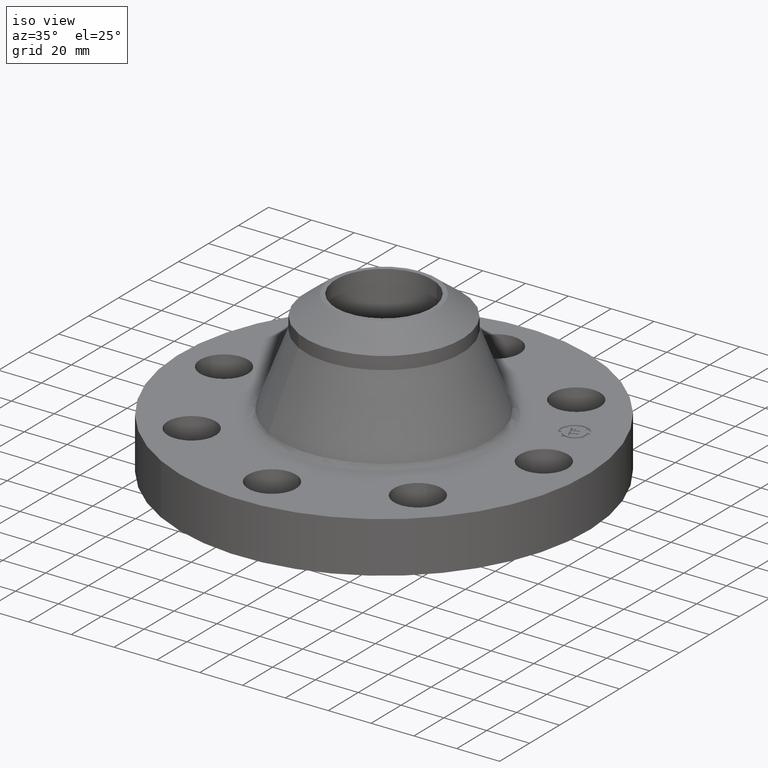
[diagram: clean part render]
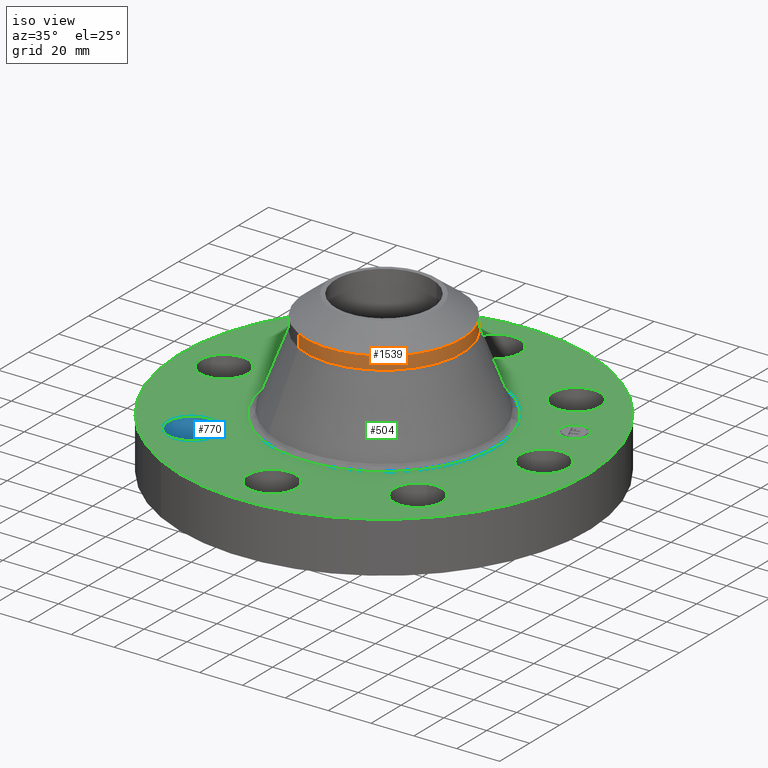
[diagram: same view with three faces highlighted in distinct colors, each labeled with its STEP entity id]
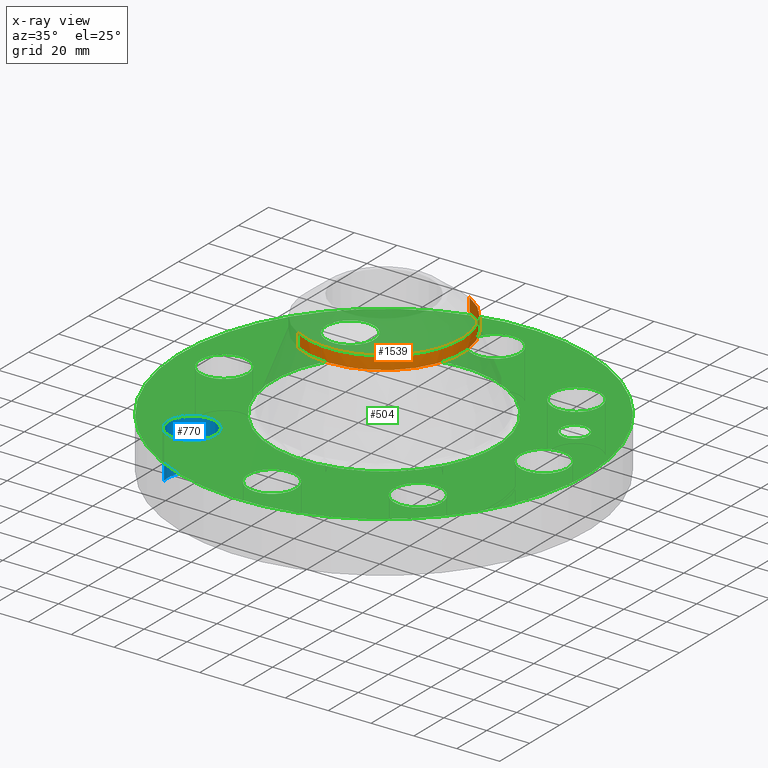
[diagram: x-ray of the same camera — body ghosted, the three highlighted faces saturated]
A machine part, iso view with three faces highlighted in distinct colors.
The next image is the same camera in x-ray (body ghosted, the three faces saturated) — at least one of them is partly hidden behind the body in this view.
Their STEP definitions:

[orange] entity #1539 — the highlighted cylindrical surface (partial cylindrical patch) has radius 36.576 mm, axis along (-0, 0, -1).
#1187=AXIS2_PLACEMENT_3D('Circle Axis2P3D',#1185,#1186,$) ;
#1506=AXIS2_PLACEMENT_3D('Cylinder Axis2P3D',#1503,#1504,#1505) ;
#1529=AXIS2_PLACEMENT_3D('Circle Axis2P3D',#1527,#1528,$) ;
#1151=CARTESIAN_POINT('Vertex',(-0.690372775594,-1.26371888913,2.33871616061)) ;
#1158=CARTESIAN_POINT('Vertex',(0.690372775595,1.26371888913,2.33871616061)) ;
#1185=CARTESIAN_POINT('Axis2P3D Location',(0.,0.,2.33871616061)) ;
#1462=CARTESIAN_POINT('Line Origine',(0.690372775595,1.26371888913,2.45682639686)) ;
#1466=CARTESIAN_POINT('Vertex',(0.690372775595,1.26371888913,2.57493663308)) ;
#1469=CARTESIAN_POINT('Line Origine',(-0.690372775595,-1.26371888913,2.45682639686)) ;
#1473=CARTESIAN_POINT('Vertex',(-0.690372775594,-1.26371888913,2.57493663308)) ;
#1503=CARTESIAN_POINT('Axis2P3D Location',(0.,0.,1.43875000001)) ;
#1509=CARTESIAN_POINT('Control Point',(0.690372775595,1.26371888913,2.57493663305)) ;
#1510=CARTESIAN_POINT('Control Point',(0.825691330054,1.18979402591,2.57493663305)) ;
#1511=CARTESIAN_POINT('Control Point',(0.951115075512,1.0977568363,2.57493663305)) ;
#1512=CARTESIAN_POINT('Control Point',(1.06340845083,0.989369711093,2.57493663305)) ;
#1513=CARTESIAN_POINT('Control Point',(1.25624520292,0.745193897747,2.57493663306)) ;
#1514=CARTESIAN_POINT('Control Point',(1.37807877501,0.458899605991,2.57493663306)) ;
#1515=CARTESIAN_POINT('Control Point',(1.41936111409,0.308389342118,2.57493663306)) ;
#1516=CARTESIAN_POINT('Control Point',(1.46063888593,-8.81872889711E-013,2.57493663306)) ;
#1517=CARTESIAN_POINT('Control Point',(1.41936111409,-0.30838934212,2.57493663307)) ;
#1518=CARTESIAN_POINT('Control Point',(1.37807877501,-0.458899605992,2.57493663307)) ;
#1519=CARTESIAN_POINT('Control Point',(1.25624520292,-0.745193897749,2.57493663307)) ;
#1520=CARTESIAN_POINT('Control Point',(1.06340845082,-0.989369711094,2.57493663307)) ;
#1521=CARTESIAN_POINT('Control Point',(0.951115075511,-1.0977568363,2.57493663308)) ;
#1522=CARTESIAN_POINT('Control Point',(0.825691330052,-1.18979402591,2.57493663308)) ;
#1523=CARTESIAN_POINT('Control Point',(0.690372775594,-1.26371888913,2.57493663308)) ;
#1524=CARTESIAN_POINT('Vertex',(0.690372775594,-1.26371888913,2.57493663305)) ;
#1527=CARTESIAN_POINT('Axis2P3D Location',(0.,0.,2.57493663308)) ;
#1186=DIRECTION('Axis2P3D Direction',(-0.,0.,-0.0393700787402)) ;
#1463=DIRECTION('Vector Direction',(0.,0.,-0.0393700787402)) ;
#1470=DIRECTION('Vector Direction',(0.,0.,-0.0393700787402)) ;
#1504=DIRECTION('Axis2P3D Direction',(-0.,0.,-0.0393700787402)) ;
#1505=DIRECTION('Axis2P3D XDirection',(0.0188750212049,0.0345504945626,0.)) ;
#1528=DIRECTION('Axis2P3D Direction',(-0.,0.,-0.0393700787402)) ;
#1464=VECTOR('Line Direction',#1463,0.0393700787402) ;
#1471=VECTOR('Line Direction',#1470,0.0393700787402) ;
#1533=ORIENTED_EDGE('',*,*,#1475,.F.) ;
#1534=ORIENTED_EDGE('',*,*,#1189,.F.) ;
#1535=ORIENTED_EDGE('',*,*,#1468,.T.) ;
#1536=ORIENTED_EDGE('',*,*,#1526,.F.) ;
#1537=ORIENTED_EDGE('',*,*,#1531,.T.) ;
#1539=ADVANCED_FACE('PartBody',(#1538),#1507,.T.) ;
#1508=B_SPLINE_CURVE_WITH_KNOTS('',5,(#1509,#1510,#1511,#1512,#1513,#1514,#1515,#1516,#1517,#1518,#1519,#1520,#1521,#1522,#1523),.UNSPECIFIED.,.F.,.U.,(6,3,3,3,6),(-39.1654464491,-19.5827232246,0.,19.5827232246,39.1654464491),.UNSPECIFIED.) ;
#1188=CIRCLE('generated circle',#1187,1.44000000001) ;
#1530=CIRCLE('generated circle',#1529,1.44000000001) ;
#1507=CYLINDRICAL_SURFACE('generated cylinder',#1506,1.44000000001) ;
#1189=EDGE_CURVE('',#1159,#1152,#1188,.T.) ;
#1468=EDGE_CURVE('',#1159,#1467,#1465,.F.) ;
#1475=EDGE_CURVE('',#1152,#1474,#1472,.F.) ;
#1526=EDGE_CURVE('',#1525,#1467,#1508,.F.) ;
#1531=EDGE_CURVE('',#1525,#1474,#1530,.T.) ;
#1532=EDGE_LOOP('',(#1533,#1534,#1535,#1536,#1537)) ;
#1538=FACE_OUTER_BOUND('',#1532,.T.) ;
#1465=LINE('Line',#1462,#1464) ;
#1472=LINE('Line',#1469,#1471) ;
#1152=VERTEX_POINT('',#1151) ;
#1159=VERTEX_POINT('',#1158) ;
#1467=VERTEX_POINT('',#1466) ;
#1474=VERTEX_POINT('',#1473) ;
#1525=VERTEX_POINT('',#1524) ;

[blue] entity #770 — the highlighted cylindrical surface (edge-blend (fillet) strip) has radius 11.176 mm, axis along (-0, 0, -1).
#228=AXIS2_PLACEMENT_3D('Circle Axis2P3D',#226,#227,$) ;
#398=AXIS2_PLACEMENT_3D('Circle Axis2P3D',#396,#397,$) ;
#762=AXIS2_PLACEMENT_3D('Cylinder Axis2P3D',#759,#760,#761) ;
#221=CARTESIAN_POINT('Vertex',(-1.65669209947,-1.95501654302,0.)) ;
#223=CARTESIAN_POINT('Vertex',(-2.5010957739,-2.20277133041,0.)) ;
#226=CARTESIAN_POINT('Axis2P3D Location',(-2.07889393669,-2.07889393671,0.)) ;
#396=CARTESIAN_POINT('Axis2P3D Location',(-2.07889393667,-2.07889393674,0.940000000004)) ;
#400=CARTESIAN_POINT('Vertex',(-2.5010957739,-2.20277133037,0.940000000004)) ;
#402=CARTESIAN_POINT('Vertex',(-1.6566920995,-1.955016543,0.939999999989)) ;
#735=CARTESIAN_POINT('Line Origine',(-1.6566920995,-1.955016543,0.469999999993)) ;
#740=CARTESIAN_POINT('Line Origine',(-2.5010957739,-2.2027713304,0.469999999993)) ;
#759=CARTESIAN_POINT('Axis2P3D Location',(-2.0788939367,-2.0788939367,0.93606299213)) ;
#227=DIRECTION('Axis2P3D Direction',(0.,0.,-0.0393700787402)) ;
#397=DIRECTION('Axis2P3D Direction',(0.,0.,-0.0393700787402)) ;
#736=DIRECTION('Vector Direction',(0.,0.,-0.0393700787402)) ;
#741=DIRECTION('Vector Direction',(0.,0.,-0.0393700787402)) ;
#760=DIRECTION('Axis2P3D Direction',(-0.,0.,-0.0393700787402)) ;
#761=DIRECTION('Axis2P3D XDirection',(-0.0377775444876,-0.0110842335096,0.)) ;
#737=VECTOR('Line Direction',#736,0.0393700787402) ;
#742=VECTOR('Line Direction',#741,0.0393700787402) ;
#765=ORIENTED_EDGE('',*,*,#744,.F.) ;
#766=ORIENTED_EDGE('',*,*,#230,.T.) ;
#767=ORIENTED_EDGE('',*,*,#739,.T.) ;
#768=ORIENTED_EDGE('',*,*,#404,.F.) ;
#770=ADVANCED_FACE('PartBody',(#769),#763,.F.) ;
#229=CIRCLE('generated circle',#228,0.440000000019) ;
#399=CIRCLE('generated circle',#398,0.440000000019) ;
#763=CYLINDRICAL_SURFACE('generated cylinder',#762,0.440000000002) ;
#230=EDGE_CURVE('',#224,#222,#229,.T.) ;
#404=EDGE_CURVE('',#401,#403,#399,.T.) ;
#739=EDGE_CURVE('',#222,#403,#738,.F.) ;
#744=EDGE_CURVE('',#224,#401,#743,.F.) ;
#764=EDGE_LOOP('',(#765,#766,#767,#768)) ;
#769=FACE_OUTER_BOUND('',#764,.T.) ;
#738=LINE('Line',#735,#737) ;
#743=LINE('Line',#740,#742) ;
#222=VERTEX_POINT('',#221) ;
#224=VERTEX_POINT('',#223) ;
#401=VERTEX_POINT('',#400) ;
#403=VERTEX_POINT('',#402) ;

[green] entity #504 — the highlighted planar face has unit normal (0, 0, -1).
#65=AXIS2_PLACEMENT_3D('Circle Axis2P3D',#63,#64,$) ;
#318=AXIS2_PLACEMENT_3D('Plane Axis2P3D',#315,#316,#317) ;
#322=AXIS2_PLACEMENT_3D('Circle Axis2P3D',#320,#321,$) ;
#331=AXIS2_PLACEMENT_3D('Circle Axis2P3D',#329,#330,$) ;
#344=AXIS2_PLACEMENT_3D('Circle Axis2P3D',#342,#343,$) ;
#353=AXIS2_PLACEMENT_3D('Circle Axis2P3D',#351,#352,$) ;
#362=AXIS2_PLACEMENT_3D('Circle Axis2P3D',#360,#361,$) ;
#371=AXIS2_PLACEMENT_3D('Circle Axis2P3D',#369,#370,$) ;
#380=AXIS2_PLACEMENT_3D('Circle Axis2P3D',#378,#379,$) ;
#389=AXIS2_PLACEMENT_3D('Circle Axis2P3D',#387,#388,$) ;
#398=AXIS2_PLACEMENT_3D('Circle Axis2P3D',#396,#397,$) ;
#407=AXIS2_PLACEMENT_3D('Circle Axis2P3D',#405,#406,$) ;
#416=AXIS2_PLACEMENT_3D('Circle Axis2P3D',#414,#415,$) ;
#425=AXIS2_PLACEMENT_3D('Circle Axis2P3D',#423,#424,$) ;
#434=AXIS2_PLACEMENT_3D('Circle Axis2P3D',#432,#433,$) ;
#443=AXIS2_PLACEMENT_3D('Circle Axis2P3D',#441,#442,$) ;
#452=AXIS2_PLACEMENT_3D('Circle Axis2P3D',#450,#451,$) ;
#461=AXIS2_PLACEMENT_3D('Circle Axis2P3D',#459,#460,$) ;
#470=AXIS2_PLACEMENT_3D('Circle Axis2P3D',#468,#469,$) ;
#479=AXIS2_PLACEMENT_3D('Circle Axis2P3D',#477,#478,$) ;
#488=AXIS2_PLACEMENT_3D('Circle Axis2P3D',#486,#487,$) ;
#497=AXIS2_PLACEMENT_3D('Circle Axis2P3D',#495,#496,$) ;
#46=CARTESIAN_POINT('Vertex',(2.55386367278,0.210947236987,0.939999999989)) ;
#60=CARTESIAN_POINT('Vertex',(3.32613632724,-0.210947236984,0.939999999989)) ;
#63=CARTESIAN_POINT('Axis2P3D Location',(2.94000000001,0.,0.939999999989)) ;
#106=CARTESIAN_POINT('Control Point',(3.32613632724,-0.210947236987,0.939999999989)) ;
#107=CARTESIAN_POINT('Control Point',(3.29300081274,-0.271601389433,0.93999999999)) ;
#108=CARTESIAN_POINT('Control Point',(3.24795588326,-0.325749398821,0.939999999991)) ;
#109=CARTESIAN_POINT('Control Point',(3.1926953225,-0.370262840224,0.939999999992)) ;
#110=CARTESIAN_POINT('Control Point',(3.06769808393,-0.435223603166,0.939999999993)) ;
#111=CARTESIAN_POINT('Control Point',(2.92741808449,-0.448097302225,0.939999999994)) ;
#112=CARTESIAN_POINT('Control Point',(2.85686721097,-0.440497941251,0.939999999995)) ;
#113=CARTESIAN_POINT('Control Point',(2.72254661997,-0.398045742217,0.939999999997)) ;
#114=CARTESIAN_POINT('Control Point',(2.61425060119,-0.307955883249,0.939999999998)) ;
#115=CARTESIAN_POINT('Control Point',(2.56973715979,-0.252695322491,0.939999999999)) ;
#116=CARTESIAN_POINT('Control Point',(2.50477639684,-0.127698083922,0.94)) ;
#117=CARTESIAN_POINT('Control Point',(2.49190269778,0.0125819155223,0.940000000002)) ;
#118=CARTESIAN_POINT('Control Point',(2.49950205876,0.0831327890369,0.940000000003)) ;
#119=CARTESIAN_POINT('Control Point',(2.52072815828,0.150293084541,0.940000000003)) ;
#120=CARTESIAN_POINT('Control Point',(2.55386367278,0.210947236987,0.940000000004)) ;
#315=CARTESIAN_POINT('Axis2P3D Location',(0.,3.75000000001,0.940000000004)) ;
#320=CARTESIAN_POINT('Axis2P3D Location',(1.67844740731E-015,1.00007491352E-011,0.940000000004)) ;
#324=CARTESIAN_POINT('Vertex',(1.79784576977,3.29093460711,0.940000000006)) ;
#326=CARTESIAN_POINT('Vertex',(-1.79784576978,-3.29093460711,0.940000000006)) ;
#329=CARTESIAN_POINT('Axis2P3D Location',(3.08521012762E-011,-6.85589817638E-012,0.940000000004)) ;
#342=CARTESIAN_POINT('Axis2P3D Location',(1.28121485424E-011,-3.36651791308E-011,0.940000000004)) ;
#346=CARTESIAN_POINT('Vertex',(-0.984191432936,-1.8015503338,0.94)) ;
#348=CARTESIAN_POINT('Vertex',(0.98419143294,1.80155033381,0.94)) ;
#351=CARTESIAN_POINT('Axis2P3D Location',(-1.28121485424E-011,-1.96669277539E-011,0.940000000004)) ;
#360=CARTESIAN_POINT('Axis2P3D Location',(2.07889393666,-2.07889393672,0.940000000004)) ;
#364=CARTESIAN_POINT('Vertex',(2.20277133038,-2.50109577389,0.940000000004)) ;
#366=CARTESIAN_POINT('Vertex',(1.955016543,-1.6566920995,0.939999999989)) ;
#369=CARTESIAN_POINT('Axis2P3D Location',(2.07889393673,-2.0788939367,0.940000000004)) ;
#378=CARTESIAN_POINT('Axis2P3D Location',(3.49676543189E-017,-2.94000000003,0.940000000004)) ;
#382=CARTESIAN_POINT('Vertex',(-0.210947236984,-3.32613632724,0.939999999989)) ;
#384=CARTESIAN_POINT('Vertex',(0.210947236987,-2.55386367278,0.939999999989)) ;
#387=CARTESIAN_POINT('Axis2P3D Location',(-3.49676543189E-017,-2.94000000003,0.940000000004)) ;
#396=CARTESIAN_POINT('Axis2P3D Location',(-2.07889393667,-2.07889393674,0.940000000004)) ;
#400=CARTESIAN_POINT('Vertex',(-2.5010957739,-2.20277133037,0.940000000004)) ;
#402=CARTESIAN_POINT('Vertex',(-1.6566920995,-1.955016543,0.939999999989)) ;
#405=CARTESIAN_POINT('Axis2P3D Location',(-2.07889393669,-2.07889393668,0.940000000004)) ;
#414=CARTESIAN_POINT('Axis2P3D Location',(-2.93999999999,2.28117787127E-011,0.940000000004)) ;
#418=CARTESIAN_POINT('Vertex',(-3.32613632724,0.210947236984,0.939999999989)) ;
#420=CARTESIAN_POINT('Vertex',(-2.55386367278,-0.210947236987,0.939999999989)) ;
#423=CARTESIAN_POINT('Axis2P3D Location',(-2.94000000001,-2.81139940724E-012,0.940000000004)) ;
#432=CARTESIAN_POINT('Axis2P3D Location',(-2.07889393669,2.0788939367,0.940000000004)) ;
#436=CARTESIAN_POINT('Vertex',(-2.20277133038,2.50109577391,0.940000000004)) ;
#438=CARTESIAN_POINT('Vertex',(-1.955016543,1.6566920995,0.939999999989)) ;
#441=CARTESIAN_POINT('Axis2P3D Location',(-2.07889393669,2.0788939367,0.940000000004)) ;
#450=CARTESIAN_POINT('Axis2P3D Location',(1.28117289306E-011,2.94,0.940000000004)) ;
#454=CARTESIAN_POINT('Vertex',(0.210947236984,3.32613632724,0.939999999989)) ;
#456=CARTESIAN_POINT('Vertex',(-0.210947236987,2.55386367278,0.939999999989)) ;
#459=CARTESIAN_POINT('Axis2P3D Location',(-1.28117289306E-011,2.94000000002,0.940000000004)) ;
#468=CARTESIAN_POINT('Axis2P3D Location',(2.07889393669,2.0788939367,0.940000000004)) ;
#472=CARTESIAN_POINT('Vertex',(2.5010957739,2.20277133039,0.940000000004)) ;
#474=CARTESIAN_POINT('Vertex',(1.6566920995,1.955016543,0.939999999989)) ;
#477=CARTESIAN_POINT('Axis2P3D Location',(2.07889393669,2.0788939367,0.940000000004)) ;
#486=CARTESIAN_POINT('Axis2P3D Location',(2.71620582554,1.12508929114,0.940000000004)) ;
#490=CARTESIAN_POINT('Vertex',(2.62149167606,1.35374947547,0.940000000004)) ;
#492=CARTESIAN_POINT('Vertex',(2.8109199751,0.896429106838,0.940000000004)) ;
#495=CARTESIAN_POINT('Axis2P3D Location',(2.71620582563,1.12508929117,0.940000000004)) ;
#64=DIRECTION('Axis2P3D Direction',(0.,-0.,-0.0393700787402)) ;
#316=DIRECTION('Axis2P3D Direction',(0.,0.,-0.0393700787402)) ;
#317=DIRECTION('Axis2P3D XDirection',(0.0393700787402,0.,0.)) ;
#321=DIRECTION('Axis2P3D Direction',(0.,0.,-0.0393700787402)) ;
#330=DIRECTION('Axis2P3D Direction',(0.,0.,-0.0393700787402)) ;
#343=DIRECTION('Axis2P3D Direction',(0.,0.,-0.0393700787402)) ;
#352=DIRECTION('Axis2P3D Direction',(0.,0.,-0.0393700787402)) ;
#361=DIRECTION('Axis2P3D Direction',(0.,0.,-0.0393700787402)) ;
#370=DIRECTION('Axis2P3D Direction',(0.,0.,-0.0393700787402)) ;
#379=DIRECTION('Axis2P3D Direction',(0.,0.,-0.0393700787402)) ;
#388=DIRECTION('Axis2P3D Direction',(0.,0.,-0.0393700787402)) ;
#397=DIRECTION('Axis2P3D Direction',(0.,0.,-0.0393700787402)) ;
#406=DIRECTION('Axis2P3D Direction',(0.,0.,-0.0393700787402)) ;
#415=DIRECTION('Axis2P3D Direction',(0.,0.,-0.0393700787402)) ;
#424=DIRECTION('Axis2P3D Direction',(0.,0.,-0.0393700787402)) ;
#433=DIRECTION('Axis2P3D Direction',(0.,0.,-0.0393700787402)) ;
#442=DIRECTION('Axis2P3D Direction',(0.,0.,-0.0393700787402)) ;
#451=DIRECTION('Axis2P3D Direction',(0.,0.,-0.0393700787402)) ;
#460=DIRECTION('Axis2P3D Direction',(0.,0.,-0.0393700787402)) ;
#469=DIRECTION('Axis2P3D Direction',(0.,0.,-0.0393700787402)) ;
#478=DIRECTION('Axis2P3D Direction',(0.,0.,-0.0393700787402)) ;
#487=DIRECTION('Axis2P3D Direction',(0.,0.,-0.0393700787402)) ;
#496=DIRECTION('Axis2P3D Direction',(0.,0.,-0.0393700787402)) ;
#335=ORIENTED_EDGE('',*,*,#328,.F.) ;
#336=ORIENTED_EDGE('',*,*,#333,.F.) ;
#339=ORIENTED_EDGE('',*,*,#67,.T.) ;
#340=ORIENTED_EDGE('',*,*,#121,.T.) ;
#357=ORIENTED_EDGE('',*,*,#350,.T.) ;
#358=ORIENTED_EDGE('',*,*,#355,.T.) ;
#375=ORIENTED_EDGE('',*,*,#368,.T.) ;
#376=ORIENTED_EDGE('',*,*,#373,.T.) ;
#393=ORIENTED_EDGE('',*,*,#386,.T.) ;
#394=ORIENTED_EDGE('',*,*,#391,.T.) ;
#411=ORIENTED_EDGE('',*,*,#404,.T.) ;
#412=ORIENTED_EDGE('',*,*,#409,.T.) ;
#429=ORIENTED_EDGE('',*,*,#422,.T.) ;
#430=ORIENTED_EDGE('',*,*,#427,.T.) ;
#447=ORIENTED_EDGE('',*,*,#440,.T.) ;
#448=ORIENTED_EDGE('',*,*,#445,.T.) ;
#465=ORIENTED_EDGE('',*,*,#458,.T.) ;
#466=ORIENTED_EDGE('',*,*,#463,.T.) ;
#483=ORIENTED_EDGE('',*,*,#476,.T.) ;
#484=ORIENTED_EDGE('',*,*,#481,.T.) ;
#501=ORIENTED_EDGE('',*,*,#494,.T.) ;
#502=ORIENTED_EDGE('',*,*,#499,.T.) ;
#341=FACE_BOUND('',#338,.T.) ;
#359=FACE_BOUND('',#356,.T.) ;
#377=FACE_BOUND('',#374,.T.) ;
#395=FACE_BOUND('',#392,.T.) ;
#413=FACE_BOUND('',#410,.T.) ;
#431=FACE_BOUND('',#428,.T.) ;
#449=FACE_BOUND('',#446,.T.) ;
#467=FACE_BOUND('',#464,.T.) ;
#485=FACE_BOUND('',#482,.T.) ;
#503=FACE_BOUND('',#500,.T.) ;
#504=ADVANCED_FACE('PartBody',(#337,#341,#359,#377,#395,#413,#431,#449,#467,#485,#503),#319,.F.) ;
#105=B_SPLINE_CURVE_WITH_KNOTS('',5,(#106,#107,#108,#109,#110,#111,#112,#113,#114,#115,#116,#117,#118,#119,#120),.UNSPECIFIED.,.F.,.U.,(6,3,3,3,6),(-17.5552197483,-8.77760987417,0.,8.77760987417,17.5552197483),.UNSPECIFIED.) ;
#66=CIRCLE('generated circle',#65,0.440000000002) ;
#323=CIRCLE('generated circle',#322,3.75000000005) ;
#332=CIRCLE('generated circle',#331,3.75000000005) ;
#345=CIRCLE('generated circle',#344,2.05285566513) ;
#354=CIRCLE('generated circle',#353,2.05285566513) ;
#363=CIRCLE('generated circle',#362,0.439999999984) ;
#372=CIRCLE('generated circle',#371,0.439999999984) ;
#381=CIRCLE('generated circle',#380,0.44000000002) ;
#390=CIRCLE('generated circle',#389,0.44000000002) ;
#399=CIRCLE('generated circle',#398,0.440000000019) ;
#408=CIRCLE('generated circle',#407,0.440000000019) ;
#417=CIRCLE('generated circle',#416,0.439999999988) ;
#426=CIRCLE('generated circle',#425,0.439999999988) ;
#435=CIRCLE('generated circle',#434,0.440000000019) ;
#444=CIRCLE('generated circle',#443,0.440000000019) ;
#453=CIRCLE('generated circle',#452,0.439999999988) ;
#462=CIRCLE('generated circle',#461,0.439999999988) ;
#471=CIRCLE('generated circle',#470,0.440000000019) ;
#480=CIRCLE('generated circle',#479,0.440000000019) ;
#489=CIRCLE('generated circle',#488,0.247500000023) ;
#498=CIRCLE('generated circle',#497,0.247500000023) ;
#67=EDGE_CURVE('',#47,#61,#66,.T.) ;
#121=EDGE_CURVE('',#61,#47,#105,.T.) ;
#328=EDGE_CURVE('',#325,#327,#323,.T.) ;
#333=EDGE_CURVE('',#327,#325,#332,.T.) ;
#350=EDGE_CURVE('',#347,#349,#345,.T.) ;
#355=EDGE_CURVE('',#349,#347,#354,.T.) ;
#368=EDGE_CURVE('',#365,#367,#363,.T.) ;
#373=EDGE_CURVE('',#367,#365,#372,.T.) ;
#386=EDGE_CURVE('',#383,#385,#381,.T.) ;
#391=EDGE_CURVE('',#385,#383,#390,.T.) ;
#404=EDGE_CURVE('',#401,#403,#399,.T.) ;
#409=EDGE_CURVE('',#403,#401,#408,.T.) ;
#422=EDGE_CURVE('',#419,#421,#417,.T.) ;
#427=EDGE_CURVE('',#421,#419,#426,.T.) ;
#440=EDGE_CURVE('',#437,#439,#435,.T.) ;
#445=EDGE_CURVE('',#439,#437,#444,.T.) ;
#458=EDGE_CURVE('',#455,#457,#453,.T.) ;
#463=EDGE_CURVE('',#457,#455,#462,.T.) ;
#476=EDGE_CURVE('',#473,#475,#471,.T.) ;
#481=EDGE_CURVE('',#475,#473,#480,.T.) ;
#494=EDGE_CURVE('',#491,#493,#489,.T.) ;
#499=EDGE_CURVE('',#493,#491,#498,.T.) ;
#334=EDGE_LOOP('',(#335,#336)) ;
#338=EDGE_LOOP('',(#339,#340)) ;
#356=EDGE_LOOP('',(#357,#358)) ;
#374=EDGE_LOOP('',(#375,#376)) ;
#392=EDGE_LOOP('',(#393,#394)) ;
#410=EDGE_LOOP('',(#411,#412)) ;
#428=EDGE_LOOP('',(#429,#430)) ;
#446=EDGE_LOOP('',(#447,#448)) ;
#464=EDGE_LOOP('',(#465,#466)) ;
#482=EDGE_LOOP('',(#483,#484)) ;
#500=EDGE_LOOP('',(#501,#502)) ;
#337=FACE_OUTER_BOUND('',#334,.T.) ;
#319=PLANE('',#318) ;
#47=VERTEX_POINT('',#46) ;
#61=VERTEX_POINT('',#60) ;
#325=VERTEX_POINT('',#324) ;
#327=VERTEX_POINT('',#326) ;
#347=VERTEX_POINT('',#346) ;
#349=VERTEX_POINT('',#348) ;
#365=VERTEX_POINT('',#364) ;
#367=VERTEX_POINT('',#366) ;
#383=VERTEX_POINT('',#382) ;
#385=VERTEX_POINT('',#384) ;
#401=VERTEX_POINT('',#400) ;
#403=VERTEX_POINT('',#402) ;
#419=VERTEX_POINT('',#418) ;
#421=VERTEX_POINT('',#420) ;
#437=VERTEX_POINT('',#436) ;
#439=VERTEX_POINT('',#438) ;
#455=VERTEX_POINT('',#454) ;
#457=VERTEX_POINT('',#456) ;
#473=VERTEX_POINT('',#472) ;
#475=VERTEX_POINT('',#474) ;
#491=VERTEX_POINT('',#490) ;
#493=VERTEX_POINT('',#492) ;